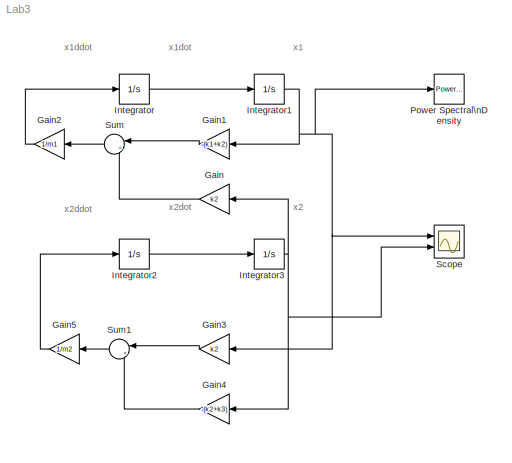
MODEL Lab3
KIND model
BLOCK [Gain] Gain
  Gain = k2
  OutDataTypeStr = Inherit: Inherit via internal rule
  ParamDataTypeStr = Inherit: Inherit via internal rule
  SID = 11
  SaturateOnIntegerOverflow = off
BLOCK [Gain] Gain1
  Gain = -(k1+k2)
  OutDataTypeStr = Inherit: Inherit via internal rule
  ParamDataTypeStr = Inherit: Inherit via internal rule
  SID = 12
  SaturateOnIntegerOverflow = off
BLOCK [Gain] Gain2
  Gain = 1/m1
  OutDataTypeStr = Inherit: Inherit via internal rule
  ParamDataTypeStr = Inherit: Inherit via internal rule
  SID = 14
  SaturateOnIntegerOverflow = off
BLOCK [Gain] Gain3
  Gain = k2
  OutDataTypeStr = Inherit: Inherit via internal rule
  ParamDataTypeStr = Inherit: Inherit via internal rule
  SID = 15
  SaturateOnIntegerOverflow = off
BLOCK [Gain] Gain4
  Gain = -(k2+k3)
  OutDataTypeStr = Inherit: Inherit via internal rule
  ParamDataTypeStr = Inherit: Inherit via internal rule
  SID = 16
  SaturateOnIntegerOverflow = off
BLOCK [Gain] Gain5
  Gain = 1/m2
  OutDataTypeStr = Inherit: Inherit via internal rule
  ParamDataTypeStr = Inherit: Inherit via internal rule
  SID = 18
  SaturateOnIntegerOverflow = off
BLOCK [Integrator] Integrator
  Ports = [1, 1]
  SID = 1
BLOCK [Integrator] Integrator1
  InitialCondition = .01
  LimitOutput = on
  LowerSaturationLimit = -.03
  Ports = [1, 1]
  SID = 2
  UpperSaturationLimit = .03
BLOCK [Integrator] Integrator2
  Ports = [1, 1]
  SID = 6
BLOCK [Integrator] Integrator3
  InitialCondition = 0.02
  LimitOutput = on
  LowerSaturationLimit = -.03
  Ports = [1, 1]
  SID = 7
  UpperSaturationLimit = .03
BLOCK [Reference] Power Spectral\nDensity  REF=simulink_extras/Additional\nSinks/Power Spectral\nDensity
  HowOften = 64
  Ports = [1]
  SID = 20
  SourceBlock = simulink_extras/Additional\nSinks/Power Spectral\nDensity
  SourceType = Power Spectral Density
  fftpts = 512
  npts = 128
  sampleT = 0.1
BLOCK [Scope] Scope
  NumInputPorts = 2
  Ports = [2]
  SID = 19
  ScopeSpecificationString = Simulink.scopes.TimeScopeBlockCfg('CurrentConfiguration', extmgr.ConfigurationSet(extmgr.Configuration('Core','General UI',true),extmgr.Configuration('Core','Source UI',true),extmgr.Configuration('Sources','WiredSimulink',true),extmgr.Configuration('Visuals','Time Domain',true,'SerializedDisplays',{struct('MinYLimReal','-0.02499','MaxYLimReal','0.025','YLabelReal','','MinYLimMag','0.00000','MaxYLi...<+1363ch>
BLOCK [Sum] Sum
  IconShape = round
  InputSameDT = off
  Inputs = |++
  OutDataTypeStr = Inherit: Inherit via internal rule
  Ports = [2, 1]
  SID = 13
  SaturateOnIntegerOverflow = off
BLOCK [Sum] Sum1
  IconShape = round
  InputSameDT = off
  Inputs = |++
  OutDataTypeStr = Inherit: Inherit via internal rule
  Ports = [2, 1]
  SID = 17
  SaturateOnIntegerOverflow = off
ANNOTATION (root): x1
ANNOTATION (root): x1ddot
ANNOTATION (root): x1dot
ANNOTATION (root): x2
ANNOTATION (root): x2ddot
ANNOTATION (root): x2dot
LINE Gain1:1 -> Sum:1
LINE Gain2:1 -> Integrator:1
LINE Gain3:1 -> Sum1:1
LINE Gain4:1 -> Sum1:2
LINE Gain5:1 -> Integrator2:1
LINE Gain:1 -> Sum:2
NET Integrator1:1 -> Gain1:1, Gain3:1, Power Spectral\nDensity:1, Scope:1
LINE Integrator2:1 -> Integrator3:1
NET Integrator3:1 -> Gain4:1, Gain:1, Scope:2
LINE Integrator:1 -> Integrator1:1
LINE Sum1:1 -> Gain5:1
LINE Sum:1 -> Gain2:1
note: NET lines group one-source signal fan-out (src -> all destinations, sorted); 1:1 wires keep LINE
